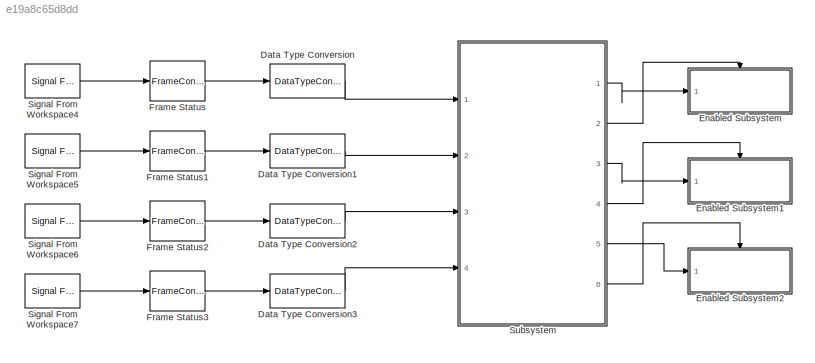
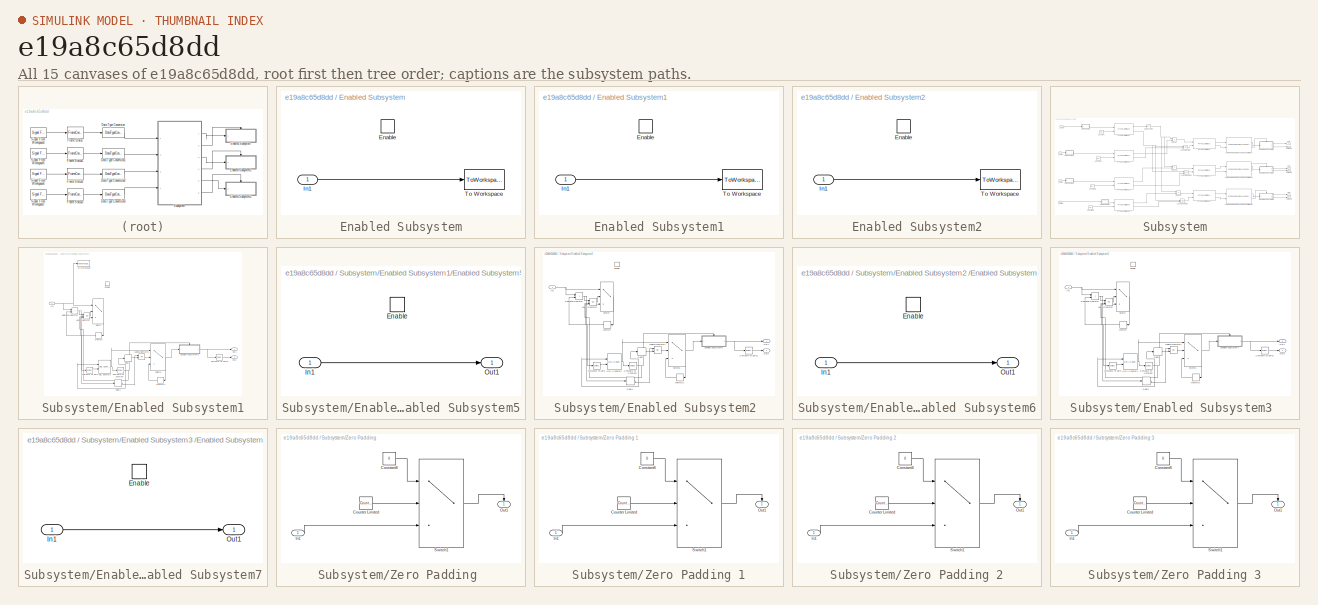
[diagram: thumbnail index - all 15 canvases of the model, root first then tree order]
MODEL slx_e19a8c65d8dd
KIND model
CONFIG AbsTol = auto
CONFIG EnableMultiTasking = off
CONFIG FixedStep = auto
CONFIG MaxStep = auto
CONFIG MinStep = auto
CONFIG RelTol = 1e-3
CONFIG SampleTimeConstraint = Unconstrained
CONFIG Solver = FixedStepDiscrete
CONFIG SolverName = FixedStepDiscrete
CONFIG StartTime = 0.0
CONFIG StopTime = .1
BLOCK [DataTypeConversion] Data Type Conversion
  OutDataTypeStr = fixdt(1,18,5)
  RndMeth = Floor
  SaturateOnIntegerOverflow = off
BLOCK [DataTypeConversion] Data Type Conversion1
  OutDataTypeStr = fixdt(1,18,5)
  RndMeth = Floor
  SaturateOnIntegerOverflow = off
BLOCK [DataTypeConversion] Data Type Conversion2
  OutDataTypeStr = fixdt(1,18,5)
  RndMeth = Floor
  SaturateOnIntegerOverflow = off
BLOCK [DataTypeConversion] Data Type Conversion3
  OutDataTypeStr = fixdt(1,18,5)
  RndMeth = Floor
  SaturateOnIntegerOverflow = off
BLOCK [SubSystem] Enabled Subsystem
  Ports = [1, 0, 1]
  RequestExecContextInheritance = off
  TreatAsAtomicUnit = on
  Variant = off
BLOCK [EnablePort] Enabled Subsystem/Enable
  Ports = []
BLOCK [Inport] Enabled Subsystem/In1
  IconDisplay = Port number
BLOCK [ToWorkspace] Enabled Subsystem/To Workspace
  FixptAsFi = on
  MaxDataPoints = inf
  Ports = [1]
  SampleTime = -1
  Save2DSignal = 2-D array (concatenate along first dimension)
  VariableName = simout
BLOCK [SubSystem] Enabled Subsystem1
  Ports = [1, 0, 1]
  RequestExecContextInheritance = off
  TreatAsAtomicUnit = on
  Variant = off
BLOCK [EnablePort] Enabled Subsystem1/Enable
  Ports = []
BLOCK [Inport] Enabled Subsystem1/In1
  IconDisplay = Port number
BLOCK [ToWorkspace] Enabled Subsystem1/To Workspace
  FixptAsFi = on
  MaxDataPoints = inf
  Ports = [1]
  SampleTime = -1
  Save2DSignal = 2-D array (concatenate along first dimension)
  VariableName = simout1
BLOCK [SubSystem] Enabled Subsystem2
  Ports = [1, 0, 1]
  RequestExecContextInheritance = off
  TreatAsAtomicUnit = on
  Variant = off
BLOCK [EnablePort] Enabled Subsystem2/Enable
  Ports = []
BLOCK [Inport] Enabled Subsystem2/In1
  IconDisplay = Port number
BLOCK [ToWorkspace] Enabled Subsystem2/To Workspace
  FixptAsFi = on
  MaxDataPoints = inf
  Ports = [1]
  SampleTime = -1
  Save2DSignal = 2-D array (concatenate along first dimension)
  VariableName = simout2
BLOCK [FrameConversion] Frame Status
  InheritSamplingMode = off
  OutFrame = Sample-based
  Ports = [1, 1]
BLOCK [FrameConversion] Frame Status1
  InheritSamplingMode = off
  OutFrame = Sample-based
  Ports = [1, 1]
BLOCK [FrameConversion] Frame Status2
  InheritSamplingMode = off
  OutFrame = Sample-based
  Ports = [1, 1]
BLOCK [FrameConversion] Frame Status3
  InheritSamplingMode = off
  OutFrame = Sample-based
  Ports = [1, 1]
BLOCK [Reference] Signal From Workspace4  REF=dspsrcs4/Signal From
Workspace
  Ports = [0, 1]
  SourceBlock = dspsrcs4/Signal From\nWorkspace
  SourceProductBaseCode = DS
  SourceProductName = DSP System Toolbox
  SourceType = Signal From Workspace
BLOCK [Reference] Signal From Workspace5  REF=dspsrcs4/Signal From
Workspace
  Ports = [0, 1]
  SourceBlock = dspsrcs4/Signal From\nWorkspace
  SourceProductBaseCode = DS
  SourceProductName = DSP System Toolbox
  SourceType = Signal From Workspace
BLOCK [Reference] Signal From Workspace6  REF=dspsrcs4/Signal From
Workspace
  Ports = [0, 1]
  SourceBlock = dspsrcs4/Signal From\nWorkspace
  SourceProductBaseCode = DS
  SourceProductName = DSP System Toolbox
  SourceType = Signal From Workspace
BLOCK [Reference] Signal From Workspace7  REF=dspsrcs4/Signal From
Workspace
  Ports = [0, 1]
  SourceBlock = dspsrcs4/Signal From\nWorkspace
  SourceProductBaseCode = DS
  SourceProductName = DSP System Toolbox
  SourceType = Signal From Workspace
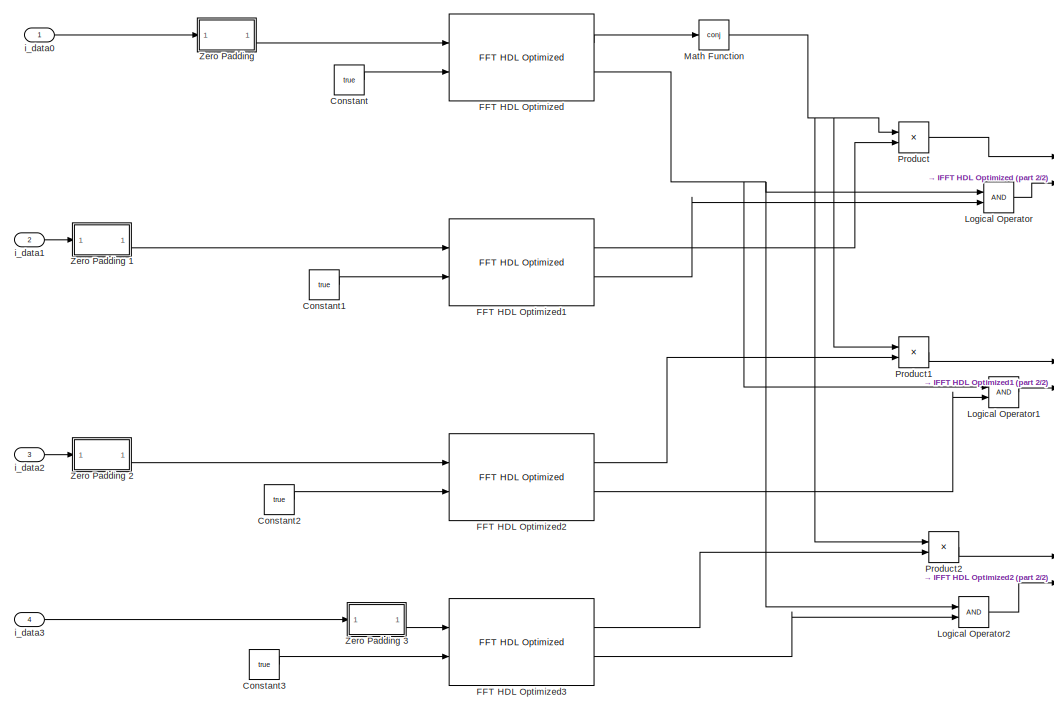
[diagram: Subsystem - part 1/2, left side, full height]
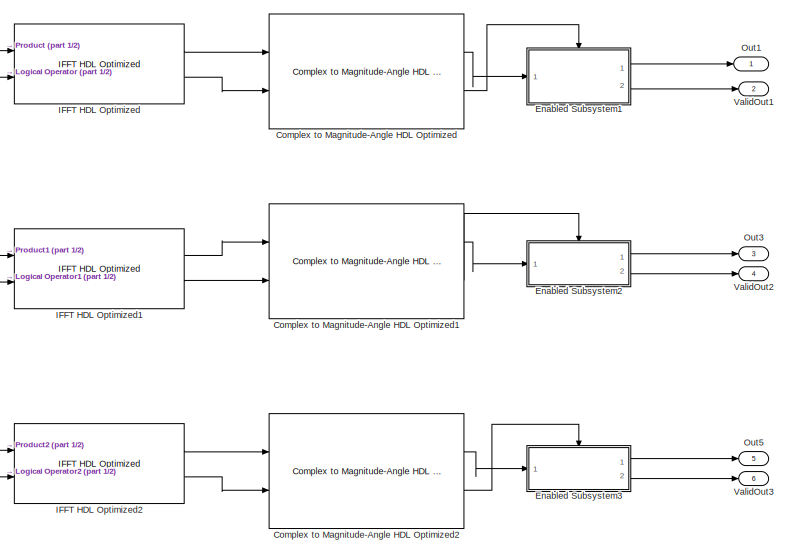
[diagram: Subsystem - part 2/2, right side, full height]
BLOCK [SubSystem] Subsystem
  Ports = [4, 6]
  RequestExecContextInheritance = off
  TreatAsAtomicUnit = on
  Variant = off
BLOCK [Reference] Subsystem/Complex to Magnitude-Angle HDL Optimized  REF=dspmathops/Complex to Magnitude-Angle
HDL Optimized
  Ports = [2, 2]
  SourceBlock = dspmathops/Complex to Magnitude-Angle\nHDL Optimized
  SourceProductBaseCode = DS
  SourceProductName = DSP System Toolbox
  SourceType = Complex to Magnitude-Angle HDL Optimized
BLOCK [Reference] Subsystem/Complex to Magnitude-Angle HDL Optimized1  REF=dspmathops/Complex to Magnitude-Angle
HDL Optimized
  Ports = [2, 2]
  SourceBlock = dspmathops/Complex to Magnitude-Angle\nHDL Optimized
  SourceProductBaseCode = DS
  SourceProductName = DSP System Toolbox
  SourceType = Complex to Magnitude-Angle HDL Optimized
BLOCK [Reference] Subsystem/Complex to Magnitude-Angle HDL Optimized2  REF=dspmathops/Complex to Magnitude-Angle
HDL Optimized
  Ports = [2, 2]
  SourceBlock = dspmathops/Complex to Magnitude-Angle\nHDL Optimized
  SourceProductBaseCode = DS
  SourceProductName = DSP System Toolbox
  SourceType = Complex to Magnitude-Angle HDL Optimized
BLOCK [Constant] Subsystem/Constant
  Value = true
BLOCK [Constant] Subsystem/Constant1
  Value = true
BLOCK [Constant] Subsystem/Constant2
  Value = true
BLOCK [Constant] Subsystem/Constant3
  Value = true
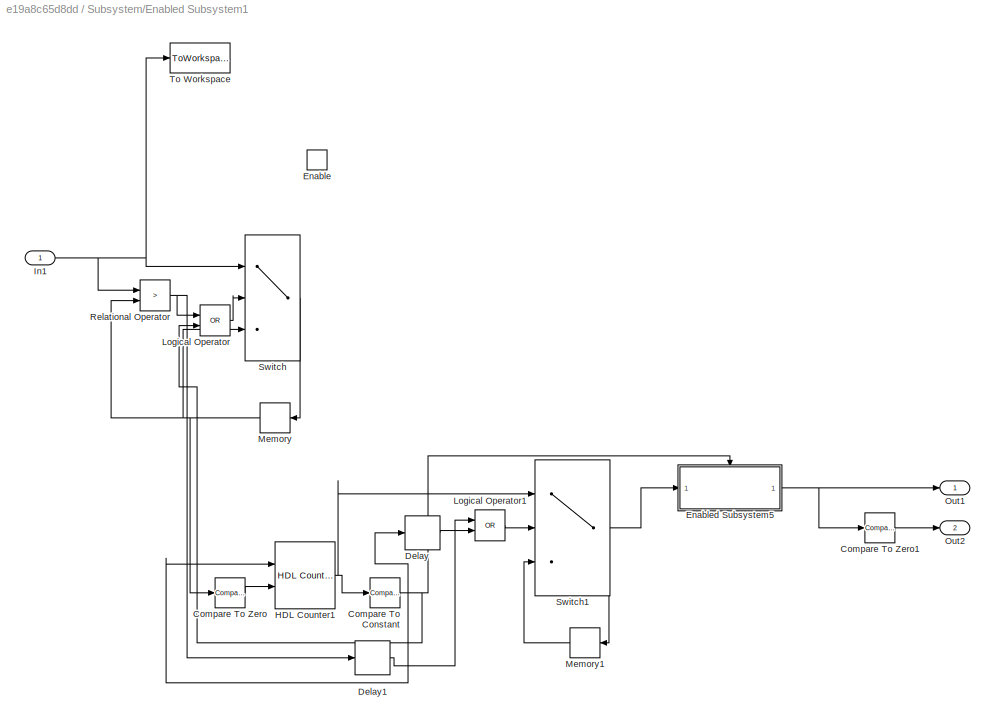
BLOCK [SubSystem] Subsystem/Enabled Subsystem1
  Ports = [1, 2, 1]
  RequestExecContextInheritance = off
  TreatAsAtomicUnit = on
  Variant = off
BLOCK [Reference] Subsystem/Enabled Subsystem1/Compare To Constant  REF=simulink/Logic and Bit
Operations/Compare
To Constant
  Ports = [1, 1]
  SourceBlock = simulink/Logic and Bit\nOperations/Compare\nTo Constant
  SourceProductBaseCode = SL
  SourceProductName = Simulink
  SourceType = Compare To Constant
BLOCK [Reference] Subsystem/Enabled Subsystem1/Compare To Zero  REF=simulink/Logic and Bit
Operations/Compare
To Zero
  Ports = [1, 1]
  SourceBlock = simulink/Logic and Bit\nOperations/Compare\nTo Zero
  SourceProductBaseCode = SL
  SourceProductName = Simulink
  SourceType = Compare To Zero
BLOCK [Reference] Subsystem/Enabled Subsystem1/Compare To Zero1  REF=simulink/Logic and Bit
Operations/Compare
To Zero
  Ports = [1, 1]
  SourceBlock = simulink/Logic and Bit\nOperations/Compare\nTo Zero
  SourceProductBaseCode = SL
  SourceProductName = Simulink
  SourceType = Compare To Zero
BLOCK [Delay] Subsystem/Enabled Subsystem1/Delay
  DelayLength = 1
  InitialCondition = 0
  InputPortMap = u0
  Ports = [1, 1]
BLOCK [Delay] Subsystem/Enabled Subsystem1/Delay1
  DelayLength = 1
  InitialCondition = 0
  InputPortMap = u0
  Ports = [1, 1]
BLOCK [EnablePort] Subsystem/Enabled Subsystem1/Enable
  Ports = []
  StatesWhenEnabling = reset
BLOCK [SubSystem] Subsystem/Enabled Subsystem1/Enabled Subsystem5
  Ports = [1, 1, 1]
  RequestExecContextInheritance = off
  TreatAsAtomicUnit = on
  Variant = off
BLOCK [EnablePort] Subsystem/Enabled Subsystem1/Enabled Subsystem5/Enable
  Ports = []
  StatesWhenEnabling = reset
BLOCK [Inport] Subsystem/Enabled Subsystem1/Enabled Subsystem5/In1
  IconDisplay = Port number
BLOCK [Outport] Subsystem/Enabled Subsystem1/Enabled Subsystem5/Out1
  IconDisplay = Port number
  InitialOutput = 0
  OutputWhenDisabled = reset
BLOCK [Reference] Subsystem/Enabled Subsystem1/HDL Counter1  REF=hdlsllib/HDL Operations/HDL Counter
  Ports = [2, 1]
  SourceBlock = hdlsllib/HDL Operations/HDL Counter
  SourceProductBaseCode = HD
  SourceProductName = HDL Coder
  SourceType = HDL Counter
BLOCK [Inport] Subsystem/Enabled Subsystem1/In1
  IconDisplay = Port number
BLOCK [Logic] Subsystem/Enabled Subsystem1/Logical Operator
  AllPortsSameDT = off
  Operator = OR
  OutDataTypeStr = boolean
  Ports = [2, 1]
BLOCK [Logic] Subsystem/Enabled Subsystem1/Logical Operator1
  AllPortsSameDT = off
  Operator = OR
  OutDataTypeStr = boolean
  Ports = [2, 1]
BLOCK [Memory] Subsystem/Enabled Subsystem1/Memory
  InheritSampleTime = on
BLOCK [Memory] Subsystem/Enabled Subsystem1/Memory1
  InheritSampleTime = on
BLOCK [Outport] Subsystem/Enabled Subsystem1/Out1
  IconDisplay = Port number
  InitialOutput = 0
BLOCK [Outport] Subsystem/Enabled Subsystem1/Out2
  IconDisplay = Port number
  Port = 2
BLOCK [RelationalOperator] Subsystem/Enabled Subsystem1/Relational Operator
  InputSameDT = off
  Operator = >
  OutDataTypeStr = boolean
  Ports = [2, 1]
BLOCK [Switch] Subsystem/Enabled Subsystem1/Switch
  InputSameDT = off
  SaturateOnIntegerOverflow = off
  Threshold = 1
BLOCK [Switch] Subsystem/Enabled Subsystem1/Switch1
  InputSameDT = off
  SaturateOnIntegerOverflow = off
  Threshold = 1
BLOCK [ToWorkspace] Subsystem/Enabled Subsystem1/To Workspace
  FixptAsFi = on
  MaxDataPoints = inf
  Ports = [1]
  SampleTime = -1
  Save2DSignal = 2-D array (concatenate along first dimension)
  VariableName = TEST1
BLOCK [SubSystem] Subsystem/Enabled Subsystem2 
  Ports = [1, 2, 1]
  RequestExecContextInheritance = off
  TreatAsAtomicUnit = on
  Variant = off
BLOCK [Reference] Subsystem/Enabled Subsystem2 /Compare To Constant  REF=simulink/Logic and Bit
Operations/Compare
To Constant
  Ports = [1, 1]
  SourceBlock = simulink/Logic and Bit\nOperations/Compare\nTo Constant
  SourceProductBaseCode = SL
  SourceProductName = Simulink
  SourceType = Compare To Constant
BLOCK [Reference] Subsystem/Enabled Subsystem2 /Compare To Zero  REF=simulink/Logic and Bit
Operations/Compare
To Zero
  Ports = [1, 1]
  SourceBlock = simulink/Logic and Bit\nOperations/Compare\nTo Zero
  SourceProductBaseCode = SL
  SourceProductName = Simulink
  SourceType = Compare To Zero
BLOCK [Reference] Subsystem/Enabled Subsystem2 /Compare To Zero1  REF=simulink/Logic and Bit
Operations/Compare
To Zero
  Ports = [1, 1]
  SourceBlock = simulink/Logic and Bit\nOperations/Compare\nTo Zero
  SourceProductBaseCode = SL
  SourceProductName = Simulink
  SourceType = Compare To Zero
BLOCK [Delay] Subsystem/Enabled Subsystem2 /Delay
  DelayLength = 1
  InitialCondition = 0
  InputPortMap = u0
  Ports = [1, 1]
BLOCK [Delay] Subsystem/Enabled Subsystem2 /Delay1
  DelayLength = 1
  InitialCondition = 0
  InputPortMap = u0
  Ports = [1, 1]
BLOCK [EnablePort] Subsystem/Enabled Subsystem2 /Enable
  Ports = []
  StatesWhenEnabling = reset
BLOCK [SubSystem] Subsystem/Enabled Subsystem2 /Enabled Subsystem6
  Ports = [1, 1, 1]
  RequestExecContextInheritance = off
  TreatAsAtomicUnit = on
  Variant = off
BLOCK [EnablePort] Subsystem/Enabled Subsystem2 /Enabled Subsystem6/Enable
  Ports = []
  StatesWhenEnabling = reset
BLOCK [Inport] Subsystem/Enabled Subsystem2 /Enabled Subsystem6/In1
  IconDisplay = Port number
BLOCK [Outport] Subsystem/Enabled Subsystem2 /Enabled Subsystem6/Out1
  IconDisplay = Port number
  InitialOutput = 0
  OutputWhenDisabled = reset
BLOCK [Reference] Subsystem/Enabled Subsystem2 /HDL Counter1  REF=hdlsllib/HDL Operations/HDL Counter
  Ports = [2, 1]
  SourceBlock = hdlsllib/HDL Operations/HDL Counter
  SourceProductBaseCode = HD
  SourceProductName = HDL Coder
  SourceType = HDL Counter
BLOCK [Inport] Subsystem/Enabled Subsystem2 /In1
  IconDisplay = Port number
BLOCK [Logic] Subsystem/Enabled Subsystem2 /Logical Operator
  AllPortsSameDT = off
  Operator = OR
  OutDataTypeStr = boolean
  Ports = [2, 1]
BLOCK [Logic] Subsystem/Enabled Subsystem2 /Logical Operator1
  AllPortsSameDT = off
  Operator = OR
  OutDataTypeStr = boolean
  Ports = [2, 1]
BLOCK [Memory] Subsystem/Enabled Subsystem2 /Memory
  InheritSampleTime = on
BLOCK [Memory] Subsystem/Enabled Subsystem2 /Memory1
  InheritSampleTime = on
BLOCK [Outport] Subsystem/Enabled Subsystem2 /Out1
  IconDisplay = Port number
  InitialOutput = 0
BLOCK [Outport] Subsystem/Enabled Subsystem2 /Out2
  IconDisplay = Port number
  Port = 2
BLOCK [RelationalOperator] Subsystem/Enabled Subsystem2 /Relational Operator
  InputSameDT = off
  Operator = >
  OutDataTypeStr = boolean
  Ports = [2, 1]
BLOCK [Switch] Subsystem/Enabled Subsystem2 /Switch
  InputSameDT = off
  SaturateOnIntegerOverflow = off
  Threshold = 1
BLOCK [Switch] Subsystem/Enabled Subsystem2 /Switch1
  InputSameDT = off
  SaturateOnIntegerOverflow = off
  Threshold = 1
BLOCK [SubSystem] Subsystem/Enabled Subsystem3 
  Ports = [1, 2, 1]
  RequestExecContextInheritance = off
  TreatAsAtomicUnit = on
  Variant = off
BLOCK [Reference] Subsystem/Enabled Subsystem3 /Compare To Constant  REF=simulink/Logic and Bit
Operations/Compare
To Constant
  Ports = [1, 1]
  SourceBlock = simulink/Logic and Bit\nOperations/Compare\nTo Constant
  SourceProductBaseCode = SL
  SourceProductName = Simulink
  SourceType = Compare To Constant
BLOCK [Reference] Subsystem/Enabled Subsystem3 /Compare To Zero  REF=simulink/Logic and Bit
Operations/Compare
To Zero
  Ports = [1, 1]
  SourceBlock = simulink/Logic and Bit\nOperations/Compare\nTo Zero
  SourceProductBaseCode = SL
  SourceProductName = Simulink
  SourceType = Compare To Zero
BLOCK [Reference] Subsystem/Enabled Subsystem3 /Compare To Zero1  REF=simulink/Logic and Bit
Operations/Compare
To Zero
  Ports = [1, 1]
  SourceBlock = simulink/Logic and Bit\nOperations/Compare\nTo Zero
  SourceProductBaseCode = SL
  SourceProductName = Simulink
  SourceType = Compare To Zero
BLOCK [Delay] Subsystem/Enabled Subsystem3 /Delay
  DelayLength = 1
  InitialCondition = 0
  InputPortMap = u0
  Ports = [1, 1]
BLOCK [Delay] Subsystem/Enabled Subsystem3 /Delay1
  DelayLength = 1
  InitialCondition = 0
  InputPortMap = u0
  Ports = [1, 1]
BLOCK [EnablePort] Subsystem/Enabled Subsystem3 /Enable
  Ports = []
  StatesWhenEnabling = reset
BLOCK [SubSystem] Subsystem/Enabled Subsystem3 /Enabled Subsystem7
  Ports = [1, 1, 1]
  RequestExecContextInheritance = off
  TreatAsAtomicUnit = on
  Variant = off
BLOCK [EnablePort] Subsystem/Enabled Subsystem3 /Enabled Subsystem7/Enable
  Ports = []
  StatesWhenEnabling = reset
BLOCK [Inport] Subsystem/Enabled Subsystem3 /Enabled Subsystem7/In1
  IconDisplay = Port number
BLOCK [Outport] Subsystem/Enabled Subsystem3 /Enabled Subsystem7/Out1
  IconDisplay = Port number
  InitialOutput = 0
  OutputWhenDisabled = reset
BLOCK [Reference] Subsystem/Enabled Subsystem3 /HDL Counter1  REF=hdlsllib/HDL Operations/HDL Counter
  Ports = [2, 1]
  SourceBlock = hdlsllib/HDL Operations/HDL Counter
  SourceProductBaseCode = HD
  SourceProductName = HDL Coder
  SourceType = HDL Counter
BLOCK [Inport] Subsystem/Enabled Subsystem3 /In1
  IconDisplay = Port number
BLOCK [Logic] Subsystem/Enabled Subsystem3 /Logical Operator
  AllPortsSameDT = off
  Operator = OR
  OutDataTypeStr = boolean
  Ports = [2, 1]
BLOCK [Logic] Subsystem/Enabled Subsystem3 /Logical Operator1
  AllPortsSameDT = off
  Operator = OR
  OutDataTypeStr = boolean
  Ports = [2, 1]
BLOCK [Memory] Subsystem/Enabled Subsystem3 /Memory
  InheritSampleTime = on
BLOCK [Memory] Subsystem/Enabled Subsystem3 /Memory1
  InheritSampleTime = on
BLOCK [Outport] Subsystem/Enabled Subsystem3 /Out1
  IconDisplay = Port number
  InitialOutput = 0
BLOCK [Outport] Subsystem/Enabled Subsystem3 /Out2
  IconDisplay = Port number
  Port = 2
BLOCK [RelationalOperator] Subsystem/Enabled Subsystem3 /Relational Operator
  InputSameDT = off
  Operator = >
  OutDataTypeStr = boolean
  Ports = [2, 1]
BLOCK [Switch] Subsystem/Enabled Subsystem3 /Switch
  InputSameDT = off
  SaturateOnIntegerOverflow = off
  Threshold = 1
BLOCK [Switch] Subsystem/Enabled Subsystem3 /Switch1
  InputSameDT = off
  SaturateOnIntegerOverflow = off
  Threshold = 1
BLOCK [Reference] Subsystem/FFT HDL Optimized  REF=dspxfrm3/FFT
HDL Optimized
  Ports = [2, 2]
  SourceBlock = dspxfrm3/FFT\nHDL Optimized
  SourceProductBaseCode = DS
  SourceProductName = DSP System Toolbox
  SourceType = FFT HDL Optimized
BLOCK [Reference] Subsystem/FFT HDL Optimized1  REF=dspxfrm3/FFT
HDL Optimized
  Ports = [2, 2]
  SourceBlock = dspxfrm3/FFT\nHDL Optimized
  SourceProductBaseCode = DS
  SourceProductName = DSP System Toolbox
  SourceType = FFT HDL Optimized
BLOCK [Reference] Subsystem/FFT HDL Optimized2  REF=dspxfrm3/FFT
HDL Optimized
  Ports = [2, 2]
  SourceBlock = dspxfrm3/FFT\nHDL Optimized
  SourceProductBaseCode = DS
  SourceProductName = DSP System Toolbox
  SourceType = FFT HDL Optimized
BLOCK [Reference] Subsystem/FFT HDL Optimized3  REF=dspxfrm3/FFT
HDL Optimized
  Ports = [2, 2]
  SourceBlock = dspxfrm3/FFT\nHDL Optimized
  SourceProductBaseCode = DS
  SourceProductName = DSP System Toolbox
  SourceType = FFT HDL Optimized
BLOCK [Reference] Subsystem/IFFT HDL Optimized  REF=dspxfrm3/IFFT
HDL Optimized
  Ports = [2, 2]
  SourceBlock = dspxfrm3/IFFT\nHDL Optimized
  SourceProductBaseCode = DS
  SourceProductName = DSP System Toolbox
  SourceType = IFFT HDL Optimized
BLOCK [Reference] Subsystem/IFFT HDL Optimized1  REF=dspxfrm3/IFFT
HDL Optimized
  Ports = [2, 2]
  SourceBlock = dspxfrm3/IFFT\nHDL Optimized
  SourceProductBaseCode = DS
  SourceProductName = DSP System Toolbox
  SourceType = IFFT HDL Optimized
BLOCK [Reference] Subsystem/IFFT HDL Optimized2  REF=dspxfrm3/IFFT
HDL Optimized
  Ports = [2, 2]
  SourceBlock = dspxfrm3/IFFT\nHDL Optimized
  SourceProductBaseCode = DS
  SourceProductName = DSP System Toolbox
  SourceType = IFFT HDL Optimized
BLOCK [Logic] Subsystem/Logical Operator
  AllPortsSameDT = off
  OutDataTypeStr = boolean
  Ports = [2, 1]
BLOCK [Logic] Subsystem/Logical Operator1
  AllPortsSameDT = off
  OutDataTypeStr = boolean
  Ports = [2, 1]
BLOCK [Logic] Subsystem/Logical Operator2
  AllPortsSameDT = off
  OutDataTypeStr = boolean
  Ports = [2, 1]
BLOCK [Math] Subsystem/Math Function
  Operator = conj
  Ports = [1, 1]
BLOCK [Outport] Subsystem/Out1
  IconDisplay = Port number
BLOCK [Outport] Subsystem/Out3
  IconDisplay = Port number
  Port = 3
BLOCK [Outport] Subsystem/Out5
  IconDisplay = Port number
  Port = 5
BLOCK [Product] Subsystem/Product
  InputSameDT = off
  OutDataTypeStr = Inherit: Inherit via internal rule
  Ports = [2, 1]
  RndMeth = Floor
  SaturateOnIntegerOverflow = off
BLOCK [Product] Subsystem/Product1
  InputSameDT = off
  OutDataTypeStr = Inherit: Inherit via internal rule
  Ports = [2, 1]
  RndMeth = Floor
  SaturateOnIntegerOverflow = off
BLOCK [Product] Subsystem/Product2
  InputSameDT = off
  OutDataTypeStr = Inherit: Inherit via internal rule
  Ports = [2, 1]
  RndMeth = Floor
  SaturateOnIntegerOverflow = off
BLOCK [Outport] Subsystem/ValidOut1
  IconDisplay = Port number
  Port = 2
BLOCK [Outport] Subsystem/ValidOut2
  IconDisplay = Port number
  Port = 4
BLOCK [Outport] Subsystem/ValidOut3 
  IconDisplay = Port number
  Port = 6
BLOCK [SubSystem] Subsystem/Zero Padding 
  Ports = [1, 1]
  RequestExecContextInheritance = off
  Variant = off
BLOCK [Constant] Subsystem/Zero Padding /Constant6
  OutDataTypeStr = uint8
  Value = 0
BLOCK [Reference] Subsystem/Zero Padding /Counter Limited  REF=simulink/Sources/Counter
Limited
  Ports = [0, 1]
  SourceBlock = simulink/Sources/Counter\nLimited
  SourceProductBaseCode = SL
  SourceProductName = Simulink
  SourceType = Counter Limited
BLOCK [Inport] Subsystem/Zero Padding /In1
  IconDisplay = Port number
BLOCK [Outport] Subsystem/Zero Padding /Out1
  IconDisplay = Port number
BLOCK [Switch] Subsystem/Zero Padding /Switch1
  Criteria = u2 > Threshold
  InputSameDT = off
  SaturateOnIntegerOverflow = off
  Threshold = 255
BLOCK [SubSystem] Subsystem/Zero Padding 1
  Ports = [1, 1]
  RequestExecContextInheritance = off
  Variant = off
BLOCK [Constant] Subsystem/Zero Padding 1/Constant6
  OutDataTypeStr = uint8
  Value = 0
BLOCK [Reference] Subsystem/Zero Padding 1/Counter Limited  REF=simulink/Sources/Counter
Limited
  Ports = [0, 1]
  SourceBlock = simulink/Sources/Counter\nLimited
  SourceProductBaseCode = SL
  SourceProductName = Simulink
  SourceType = Counter Limited
BLOCK [Inport] Subsystem/Zero Padding 1/In1
  IconDisplay = Port number
BLOCK [Outport] Subsystem/Zero Padding 1/Out1
  IconDisplay = Port number
BLOCK [Switch] Subsystem/Zero Padding 1/Switch1
  Criteria = u2 > Threshold
  InputSameDT = off
  SaturateOnIntegerOverflow = off
  Threshold = 255
BLOCK [SubSystem] Subsystem/Zero Padding 2
  Ports = [1, 1]
  RequestExecContextInheritance = off
  Variant = off
BLOCK [Constant] Subsystem/Zero Padding 2/Constant6
  OutDataTypeStr = uint8
  Value = 0
BLOCK [Reference] Subsystem/Zero Padding 2/Counter Limited  REF=simulink/Sources/Counter
Limited
  Ports = [0, 1]
  SourceBlock = simulink/Sources/Counter\nLimited
  SourceProductBaseCode = SL
  SourceProductName = Simulink
  SourceType = Counter Limited
BLOCK [Inport] Subsystem/Zero Padding 2/In1
  IconDisplay = Port number
BLOCK [Outport] Subsystem/Zero Padding 2/Out1
  IconDisplay = Port number
BLOCK [Switch] Subsystem/Zero Padding 2/Switch1
  Criteria = u2 > Threshold
  InputSameDT = off
  SaturateOnIntegerOverflow = off
  Threshold = 255
BLOCK [SubSystem] Subsystem/Zero Padding 3
  Ports = [1, 1]
  RequestExecContextInheritance = off
  Variant = off
BLOCK [Constant] Subsystem/Zero Padding 3/Constant6
  OutDataTypeStr = uint8
  Value = 0
BLOCK [Reference] Subsystem/Zero Padding 3/Counter Limited  REF=simulink/Sources/Counter
Limited
  Ports = [0, 1]
  SourceBlock = simulink/Sources/Counter\nLimited
  SourceProductBaseCode = SL
  SourceProductName = Simulink
  SourceType = Counter Limited
BLOCK [Inport] Subsystem/Zero Padding 3/In1
  IconDisplay = Port number
BLOCK [Outport] Subsystem/Zero Padding 3/Out1
  IconDisplay = Port number
BLOCK [Switch] Subsystem/Zero Padding 3/Switch1
  Criteria = u2 > Threshold
  InputSameDT = off
  SaturateOnIntegerOverflow = off
  Threshold = 255
BLOCK [Inport] Subsystem/i_data0
  IconDisplay = Port number
BLOCK [Inport] Subsystem/i_data1
  IconDisplay = Port number
  Port = 2
BLOCK [Inport] Subsystem/i_data2
  IconDisplay = Port number
  Port = 3
BLOCK [Inport] Subsystem/i_data3
  IconDisplay = Port number
  Port = 4
LINE Data Type Conversion1:1 -> Subsystem:2
LINE Data Type Conversion2:1 -> Subsystem:3
LINE Data Type Conversion3:1 -> Subsystem:4
LINE Data Type Conversion:1 -> Subsystem:1
LINE Enabled Subsystem/In1:1 -> Enabled Subsystem/To Workspace:1
LINE Enabled Subsystem1/In1:1 -> Enabled Subsystem1/To Workspace:1
LINE Enabled Subsystem2/In1:1 -> Enabled Subsystem2/To Workspace:1
LINE Frame Status1:1 -> Data Type Conversion1:1
LINE Frame Status2:1 -> Data Type Conversion2:1
LINE Frame Status3:1 -> Data Type Conversion3:1
LINE Frame Status:1 -> Data Type Conversion:1
LINE Signal From Workspace4:1 -> Frame Status:1
LINE Signal From Workspace5:1 -> Frame Status1:1
LINE Signal From Workspace6:1 -> Frame Status2:1
LINE Signal From Workspace7:1 -> Frame Status3:1
LINE Subsystem/Complex to Magnitude-Angle HDL Optimized1:1 -> Subsystem/Enabled Subsystem2 :1
LINE Subsystem/Complex to Magnitude-Angle HDL Optimized1:2 -> Subsystem/Enabled Subsystem2 :enable
LINE Subsystem/Complex to Magnitude-Angle HDL Optimized2:1 -> Subsystem/Enabled Subsystem3 :1
LINE Subsystem/Complex to Magnitude-Angle HDL Optimized2:2 -> Subsystem/Enabled Subsystem3 :enable
LINE Subsystem/Complex to Magnitude-Angle HDL Optimized:1 -> Subsystem/Enabled Subsystem1:1
LINE Subsystem/Complex to Magnitude-Angle HDL Optimized:2 -> Subsystem/Enabled Subsystem1:enable
LINE Subsystem/Constant1:1 -> Subsystem/FFT HDL Optimized1:2
LINE Subsystem/Constant2:1 -> Subsystem/FFT HDL Optimized2:2
LINE Subsystem/Constant3:1 -> Subsystem/FFT HDL Optimized3:2
LINE Subsystem/Constant:1 -> Subsystem/FFT HDL Optimized:2
NET Subsystem/Enabled Subsystem1/Compare To Constant:1 -> Subsystem/Enabled Subsystem1/Delay:1, Subsystem/Enabled Subsystem1/Enabled Subsystem5:enable, Subsystem/Enabled Subsystem1/HDL Counter1:1, Subsystem/Enabled Subsystem1/Logical Operator:2
LINE Subsystem/Enabled Subsystem1/Compare To Zero1:1 -> Subsystem/Enabled Subsystem1/Out2:1
LINE Subsystem/Enabled Subsystem1/Compare To Zero:1 -> Subsystem/Enabled Subsystem1/HDL Counter1:2
LINE Subsystem/Enabled Subsystem1/Delay1:1 -> Subsystem/Enabled Subsystem1/Logical Operator1:1
LINE Subsystem/Enabled Subsystem1/Delay:1 -> Subsystem/Enabled Subsystem1/Logical Operator1:2
LINE Subsystem/Enabled Subsystem1/Enabled Subsystem5/In1:1 -> Subsystem/Enabled Subsystem1/Enabled Subsystem5/Out1:1
NET Subsystem/Enabled Subsystem1/Enabled Subsystem5:1 -> Subsystem/Enabled Subsystem1/Compare To Zero1:1, Subsystem/Enabled Subsystem1/Out1:1
NET Subsystem/Enabled Subsystem1/HDL Counter1:1 -> Subsystem/Enabled Subsystem1/Compare To Constant:1, Subsystem/Enabled Subsystem1/Switch1:1
NET Subsystem/Enabled Subsystem1/In1:1 -> Subsystem/Enabled Subsystem1/Relational Operator:1, Subsystem/Enabled Subsystem1/Switch:1, Subsystem/Enabled Subsystem1/To Workspace:1
LINE Subsystem/Enabled Subsystem1/Logical Operator1:1 -> Subsystem/Enabled Subsystem1/Switch1:2
LINE Subsystem/Enabled Subsystem1/Logical Operator:1 -> Subsystem/Enabled Subsystem1/Switch:2
LINE Subsystem/Enabled Subsystem1/Memory1:1 -> Subsystem/Enabled Subsystem1/Switch1:3
NET Subsystem/Enabled Subsystem1/Memory:1 -> Subsystem/Enabled Subsystem1/Compare To Zero:1, Subsystem/Enabled Subsystem1/Relational Operator:2, Subsystem/Enabled Subsystem1/Switch:3
NET Subsystem/Enabled Subsystem1/Relational Operator:1 -> Subsystem/Enabled Subsystem1/Delay1:1, Subsystem/Enabled Subsystem1/Logical Operator:1
NET Subsystem/Enabled Subsystem1/Switch1:1 -> Subsystem/Enabled Subsystem1/Enabled Subsystem5:1, Subsystem/Enabled Subsystem1/Memory1:1
LINE Subsystem/Enabled Subsystem1/Switch:1 -> Subsystem/Enabled Subsystem1/Memory:1
LINE Subsystem/Enabled Subsystem1:1 -> Subsystem/Out1:1
LINE Subsystem/Enabled Subsystem1:2 -> Subsystem/ValidOut1:1
NET Subsystem/Enabled Subsystem2 /Compare To Constant:1 -> Subsystem/Enabled Subsystem2 /Delay:1, Subsystem/Enabled Subsystem2 /Enabled Subsystem6:enable, Subsystem/Enabled Subsystem2 /HDL Counter1:1, Subsystem/Enabled Subsystem2 /Logical Operator:2
LINE Subsystem/Enabled Subsystem2 /Compare To Zero1:1 -> Subsystem/Enabled Subsystem2 /Out2:1
LINE Subsystem/Enabled Subsystem2 /Compare To Zero:1 -> Subsystem/Enabled Subsystem2 /HDL Counter1:2
LINE Subsystem/Enabled Subsystem2 /Delay1:1 -> Subsystem/Enabled Subsystem2 /Logical Operator1:1
LINE Subsystem/Enabled Subsystem2 /Delay:1 -> Subsystem/Enabled Subsystem2 /Logical Operator1:2
LINE Subsystem/Enabled Subsystem2 /Enabled Subsystem6/In1:1 -> Subsystem/Enabled Subsystem2 /Enabled Subsystem6/Out1:1
NET Subsystem/Enabled Subsystem2 /Enabled Subsystem6:1 -> Subsystem/Enabled Subsystem2 /Compare To Zero1:1, Subsystem/Enabled Subsystem2 /Out1:1
NET Subsystem/Enabled Subsystem2 /HDL Counter1:1 -> Subsystem/Enabled Subsystem2 /Compare To Constant:1, Subsystem/Enabled Subsystem2 /Switch1:1
NET Subsystem/Enabled Subsystem2 /In1:1 -> Subsystem/Enabled Subsystem2 /Relational Operator:1, Subsystem/Enabled Subsystem2 /Switch:1
LINE Subsystem/Enabled Subsystem2 /Logical Operator1:1 -> Subsystem/Enabled Subsystem2 /Switch1:2
LINE Subsystem/Enabled Subsystem2 /Logical Operator:1 -> Subsystem/Enabled Subsystem2 /Switch:2
LINE Subsystem/Enabled Subsystem2 /Memory1:1 -> Subsystem/Enabled Subsystem2 /Switch1:3
NET Subsystem/Enabled Subsystem2 /Memory:1 -> Subsystem/Enabled Subsystem2 /Compare To Zero:1, Subsystem/Enabled Subsystem2 /Relational Operator:2, Subsystem/Enabled Subsystem2 /Switch:3
NET Subsystem/Enabled Subsystem2 /Relational Operator:1 -> Subsystem/Enabled Subsystem2 /Delay1:1, Subsystem/Enabled Subsystem2 /Logical Operator:1
NET Subsystem/Enabled Subsystem2 /Switch1:1 -> Subsystem/Enabled Subsystem2 /Enabled Subsystem6:1, Subsystem/Enabled Subsystem2 /Memory1:1
LINE Subsystem/Enabled Subsystem2 /Switch:1 -> Subsystem/Enabled Subsystem2 /Memory:1
LINE Subsystem/Enabled Subsystem2 :1 -> Subsystem/Out3:1
LINE Subsystem/Enabled Subsystem2 :2 -> Subsystem/ValidOut2:1
NET Subsystem/Enabled Subsystem3 /Compare To Constant:1 -> Subsystem/Enabled Subsystem3 /Delay:1, Subsystem/Enabled Subsystem3 /Enabled Subsystem7:enable, Subsystem/Enabled Subsystem3 /HDL Counter1:1, Subsystem/Enabled Subsystem3 /Logical Operator:2
LINE Subsystem/Enabled Subsystem3 /Compare To Zero1:1 -> Subsystem/Enabled Subsystem3 /Out2:1
LINE Subsystem/Enabled Subsystem3 /Compare To Zero:1 -> Subsystem/Enabled Subsystem3 /HDL Counter1:2
LINE Subsystem/Enabled Subsystem3 /Delay1:1 -> Subsystem/Enabled Subsystem3 /Logical Operator1:1
LINE Subsystem/Enabled Subsystem3 /Delay:1 -> Subsystem/Enabled Subsystem3 /Logical Operator1:2
LINE Subsystem/Enabled Subsystem3 /Enabled Subsystem7/In1:1 -> Subsystem/Enabled Subsystem3 /Enabled Subsystem7/Out1:1
NET Subsystem/Enabled Subsystem3 /Enabled Subsystem7:1 -> Subsystem/Enabled Subsystem3 /Compare To Zero1:1, Subsystem/Enabled Subsystem3 /Out1:1
NET Subsystem/Enabled Subsystem3 /HDL Counter1:1 -> Subsystem/Enabled Subsystem3 /Compare To Constant:1, Subsystem/Enabled Subsystem3 /Switch1:1
NET Subsystem/Enabled Subsystem3 /In1:1 -> Subsystem/Enabled Subsystem3 /Relational Operator:1, Subsystem/Enabled Subsystem3 /Switch:1
LINE Subsystem/Enabled Subsystem3 /Logical Operator1:1 -> Subsystem/Enabled Subsystem3 /Switch1:2
LINE Subsystem/Enabled Subsystem3 /Logical Operator:1 -> Subsystem/Enabled Subsystem3 /Switch:2
LINE Subsystem/Enabled Subsystem3 /Memory1:1 -> Subsystem/Enabled Subsystem3 /Switch1:3
NET Subsystem/Enabled Subsystem3 /Memory:1 -> Subsystem/Enabled Subsystem3 /Compare To Zero:1, Subsystem/Enabled Subsystem3 /Relational Operator:2, Subsystem/Enabled Subsystem3 /Switch:3
NET Subsystem/Enabled Subsystem3 /Relational Operator:1 -> Subsystem/Enabled Subsystem3 /Delay1:1, Subsystem/Enabled Subsystem3 /Logical Operator:1
NET Subsystem/Enabled Subsystem3 /Switch1:1 -> Subsystem/Enabled Subsystem3 /Enabled Subsystem7:1, Subsystem/Enabled Subsystem3 /Memory1:1
LINE Subsystem/Enabled Subsystem3 /Switch:1 -> Subsystem/Enabled Subsystem3 /Memory:1
LINE Subsystem/Enabled Subsystem3 :1 -> Subsystem/Out5:1
LINE Subsystem/Enabled Subsystem3 :2 -> Subsystem/ValidOut3 :1
LINE Subsystem/FFT HDL Optimized1:1 -> Subsystem/Product:2
LINE Subsystem/FFT HDL Optimized1:2 -> Subsystem/Logical Operator:2
LINE Subsystem/FFT HDL Optimized2:1 -> Subsystem/Product1:2
LINE Subsystem/FFT HDL Optimized2:2 -> Subsystem/Logical Operator1:2
LINE Subsystem/FFT HDL Optimized3:1 -> Subsystem/Product2:2
LINE Subsystem/FFT HDL Optimized3:2 -> Subsystem/Logical Operator2:2
LINE Subsystem/FFT HDL Optimized:1 -> Subsystem/Math Function:1
NET Subsystem/FFT HDL Optimized:2 -> Subsystem/Logical Operator1:1, Subsystem/Logical Operator2:1, Subsystem/Logical Operator:1
LINE Subsystem/IFFT HDL Optimized1:1 -> Subsystem/Complex to Magnitude-Angle HDL Optimized1:1
LINE Subsystem/IFFT HDL Optimized1:2 -> Subsystem/Complex to Magnitude-Angle HDL Optimized1:2
LINE Subsystem/IFFT HDL Optimized2:1 -> Subsystem/Complex to Magnitude-Angle HDL Optimized2:1
LINE Subsystem/IFFT HDL Optimized2:2 -> Subsystem/Complex to Magnitude-Angle HDL Optimized2:2
LINE Subsystem/IFFT HDL Optimized:1 -> Subsystem/Complex to Magnitude-Angle HDL Optimized:1
LINE Subsystem/IFFT HDL Optimized:2 -> Subsystem/Complex to Magnitude-Angle HDL Optimized:2
LINE Subsystem/Logical Operator1:1 -> Subsystem/IFFT HDL Optimized1:2
LINE Subsystem/Logical Operator2:1 -> Subsystem/IFFT HDL Optimized2:2
LINE Subsystem/Logical Operator:1 -> Subsystem/IFFT HDL Optimized:2
NET Subsystem/Math Function:1 -> Subsystem/Product1:1, Subsystem/Product2:1, Subsystem/Product:1
LINE Subsystem/Product1:1 -> Subsystem/IFFT HDL Optimized1:1
LINE Subsystem/Product2:1 -> Subsystem/IFFT HDL Optimized2:1
LINE Subsystem/Product:1 -> Subsystem/IFFT HDL Optimized:1
LINE Subsystem/Zero Padding /Constant6:1 -> Subsystem/Zero Padding /Switch1:1
LINE Subsystem/Zero Padding /Counter Limited:1 -> Subsystem/Zero Padding /Switch1:2
LINE Subsystem/Zero Padding /In1:1 -> Subsystem/Zero Padding /Switch1:3
LINE Subsystem/Zero Padding /Switch1:1 -> Subsystem/Zero Padding /Out1:1
LINE Subsystem/Zero Padding 1/Constant6:1 -> Subsystem/Zero Padding 1/Switch1:1
LINE Subsystem/Zero Padding 1/Counter Limited:1 -> Subsystem/Zero Padding 1/Switch1:2
LINE Subsystem/Zero Padding 1/In1:1 -> Subsystem/Zero Padding 1/Switch1:3
LINE Subsystem/Zero Padding 1/Switch1:1 -> Subsystem/Zero Padding 1/Out1:1
LINE Subsystem/Zero Padding 1:1 -> Subsystem/FFT HDL Optimized1:1
LINE Subsystem/Zero Padding 2/Constant6:1 -> Subsystem/Zero Padding 2/Switch1:1
LINE Subsystem/Zero Padding 2/Counter Limited:1 -> Subsystem/Zero Padding 2/Switch1:2
LINE Subsystem/Zero Padding 2/In1:1 -> Subsystem/Zero Padding 2/Switch1:3
LINE Subsystem/Zero Padding 2/Switch1:1 -> Subsystem/Zero Padding 2/Out1:1
LINE Subsystem/Zero Padding 2:1 -> Subsystem/FFT HDL Optimized2:1
LINE Subsystem/Zero Padding 3/Constant6:1 -> Subsystem/Zero Padding 3/Switch1:1
LINE Subsystem/Zero Padding 3/Counter Limited:1 -> Subsystem/Zero Padding 3/Switch1:2
LINE Subsystem/Zero Padding 3/In1:1 -> Subsystem/Zero Padding 3/Switch1:3
LINE Subsystem/Zero Padding 3/Switch1:1 -> Subsystem/Zero Padding 3/Out1:1
LINE Subsystem/Zero Padding 3:1 -> Subsystem/FFT HDL Optimized3:1
LINE Subsystem/Zero Padding :1 -> Subsystem/FFT HDL Optimized:1
LINE Subsystem/i_data0:1 -> Subsystem/Zero Padding :1
LINE Subsystem/i_data1:1 -> Subsystem/Zero Padding 1:1
LINE Subsystem/i_data2:1 -> Subsystem/Zero Padding 2:1
LINE Subsystem/i_data3:1 -> Subsystem/Zero Padding 3:1
LINE Subsystem:1 -> Enabled Subsystem:1
LINE Subsystem:2 -> Enabled Subsystem:enable
LINE Subsystem:3 -> Enabled Subsystem1:1
LINE Subsystem:4 -> Enabled Subsystem1:enable
LINE Subsystem:5 -> Enabled Subsystem2:1
LINE Subsystem:6 -> Enabled Subsystem2:enable
note: NET lines group one-source signal fan-out (src -> all destinations, sorted); 1:1 wires keep LINE
